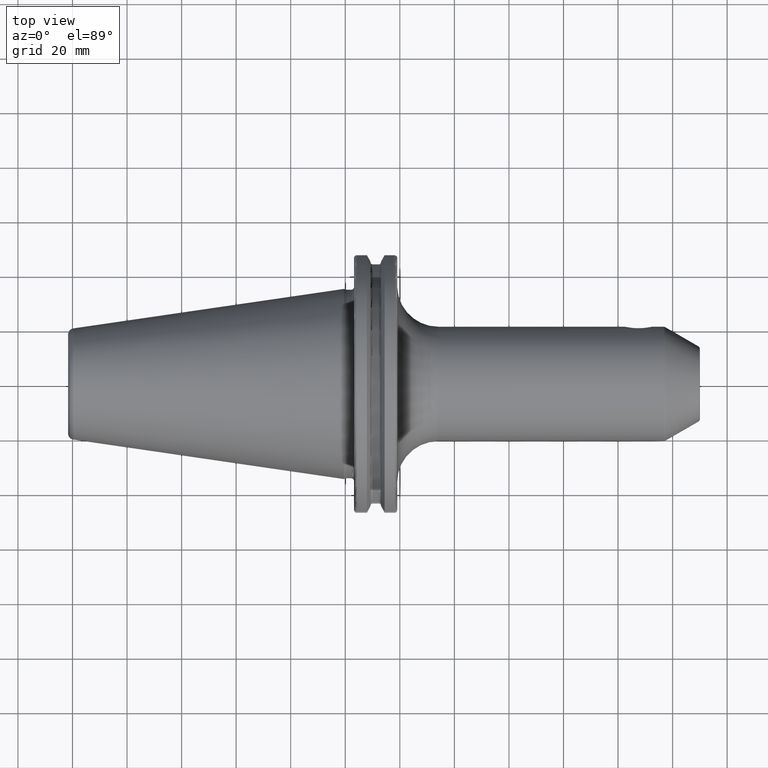
[diagram: clean part render]
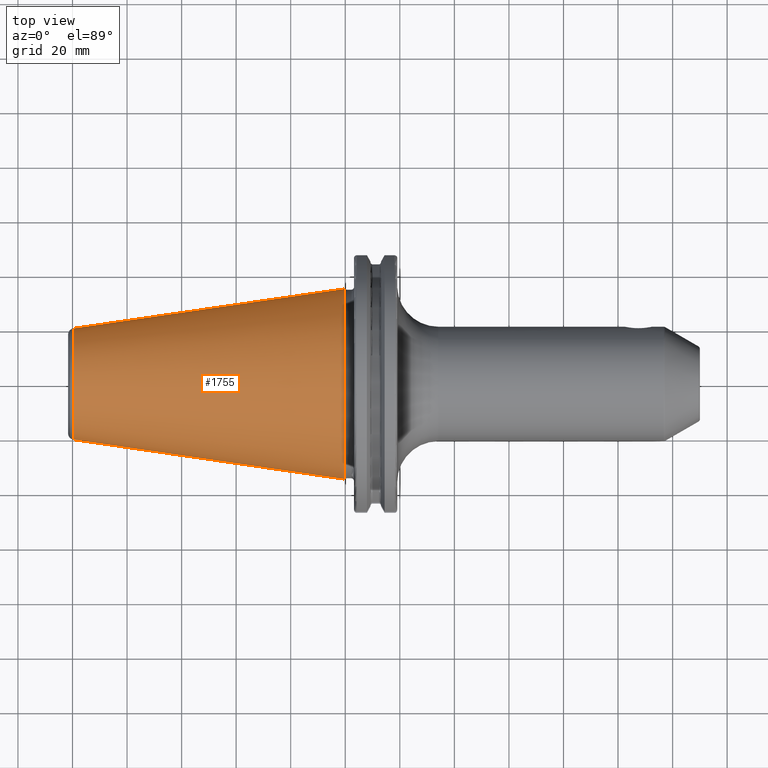
[diagram: same view with one face highlighted and labeled with its STEP entity id]
A machine part, top view. The second image highlights one B-rep face of the part: STEP entity #1755.
In plain terms, the highlighted conical surface has half-angle 8.298 deg.
Its self-contained STEP definition (entity closure, byte-faithful):
#37=CARTESIAN_POINT('',(-9.967471700563E1,0.E0,0.E0));
#38=DIRECTION('',(1.E0,0.E0,0.E0));
#39=DIRECTION('',(0.E0,1.E0,0.E0));
#40=AXIS2_PLACEMENT_3D('',#37,#38,#39);
#42=CARTESIAN_POINT('',(-4.896823332305E-1,0.E0,0.E0));
#43=DIRECTION('',(1.E0,0.E0,0.E0));
#44=DIRECTION('',(0.E0,1.E0,0.E0));
#45=AXIS2_PLACEMENT_3D('',#42,#43,#44);
#47=DIRECTION('',(-9.895312636440E-1,-1.443186691705E-1,0.E0));
#48=VECTOR('',#47,1.002343617797E2);
#49=CARTESIAN_POINT('',(-4.896823332305E-1,3.485358204157E1,0.E0));
#50=LINE('',#49,#48);
#51=DIRECTION('',(-9.895312636440E-1,1.443186691705E-1,0.E0));
#52=VECTOR('',#51,1.002343617797E2);
#53=CARTESIAN_POINT('',(-4.896823332305E-1,-3.485358204157E1,0.E0));
#54=LINE('',#53,#52);
#1420=CARTESIAN_POINT('',(-9.967471700563E1,2.038789234437E1,0.E0));
#1422=VERTEX_POINT('',#1420);
#1424=CARTESIAN_POINT('',(-9.967471700563E1,-2.038789234437E1,0.E0));
#1426=VERTEX_POINT('',#1424);
#1488=CARTESIAN_POINT('',(-4.896823332305E-1,3.485358204157E1,0.E0));
#1489=VERTEX_POINT('',#1488);
#1490=CARTESIAN_POINT('',(-4.896823332305E-1,-3.485358204157E1,0.E0));
#1491=VERTEX_POINT('',#1490);
#1741=CARTESIAN_POINT('',(-5.008219966943E1,0.E0,0.E0));
#1742=DIRECTION('',(1.E0,0.E0,0.E0));
#1743=DIRECTION('',(0.E0,-1.E0,0.E0));
#1744=AXIS2_PLACEMENT_3D('',#1741,#1742,#1743);
#1745=CONICAL_SURFACE('',#1744,2.762073719297E1,8.297826828206E0);
#1747=ORIENTED_EDGE('',*,*,#1746,.F.);
#1749=ORIENTED_EDGE('',*,*,#1748,.T.);
#1751=ORIENTED_EDGE('',*,*,#1750,.T.);
#1752=ORIENTED_EDGE('',*,*,#1734,.F.);
#1753=EDGE_LOOP('',(#1747,#1749,#1751,#1752));
#1754=FACE_OUTER_BOUND('',#1753,.F.);
#1755=ADVANCED_FACE('',(#1754),#1745,.T.);
#41=CIRCLE('',#40,2.038789234437E1);
#46=CIRCLE('',#45,3.485358204157E1);
#1734=EDGE_CURVE('',#1422,#1426,#41,.T.);
#1746=EDGE_CURVE('',#1489,#1422,#50,.T.);
#1748=EDGE_CURVE('',#1489,#1491,#46,.T.);
#1750=EDGE_CURVE('',#1491,#1426,#54,.T.);